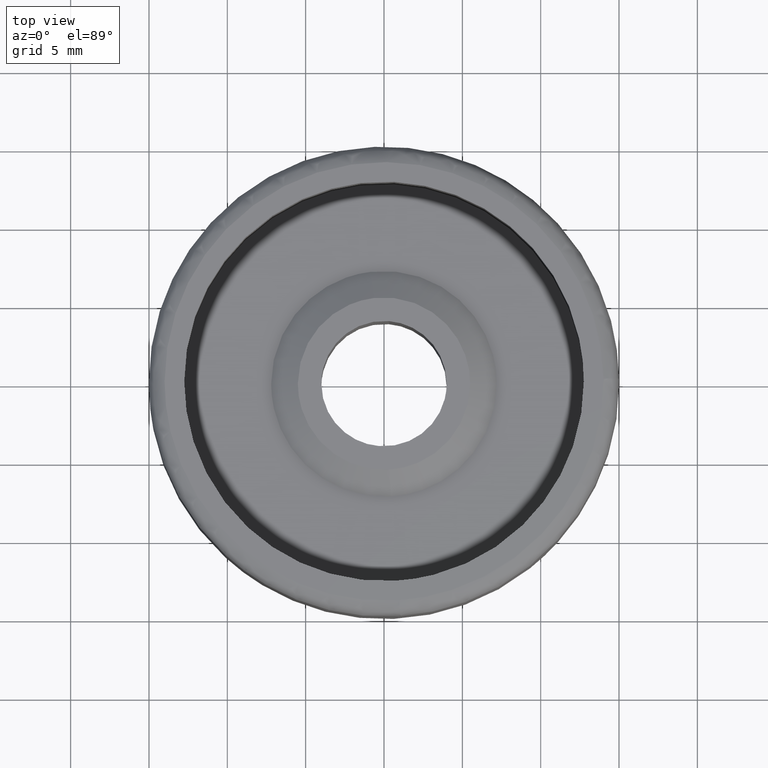
[diagram: clean part render]
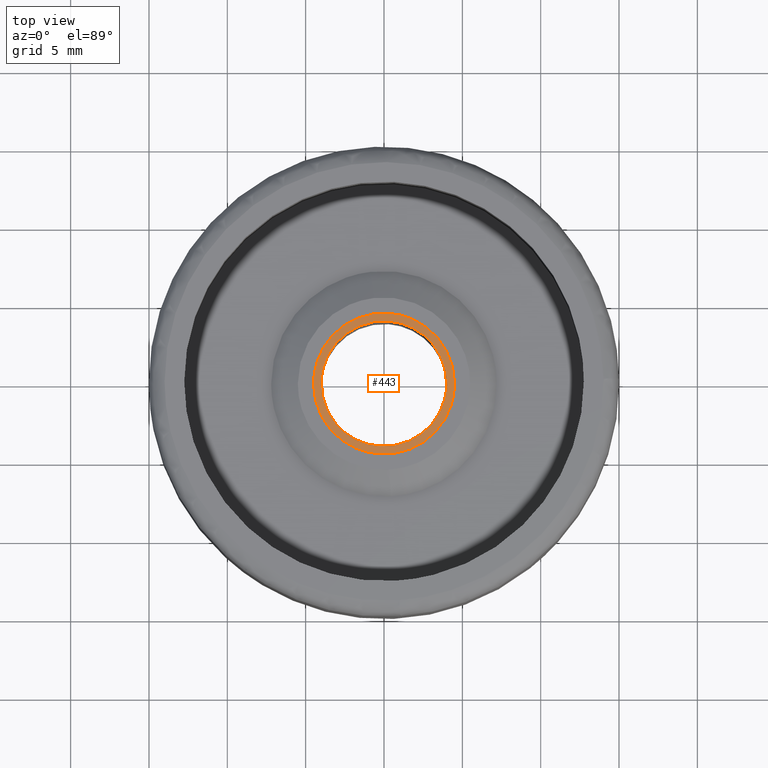
[diagram: same view with one face highlighted and labeled with its STEP entity id]
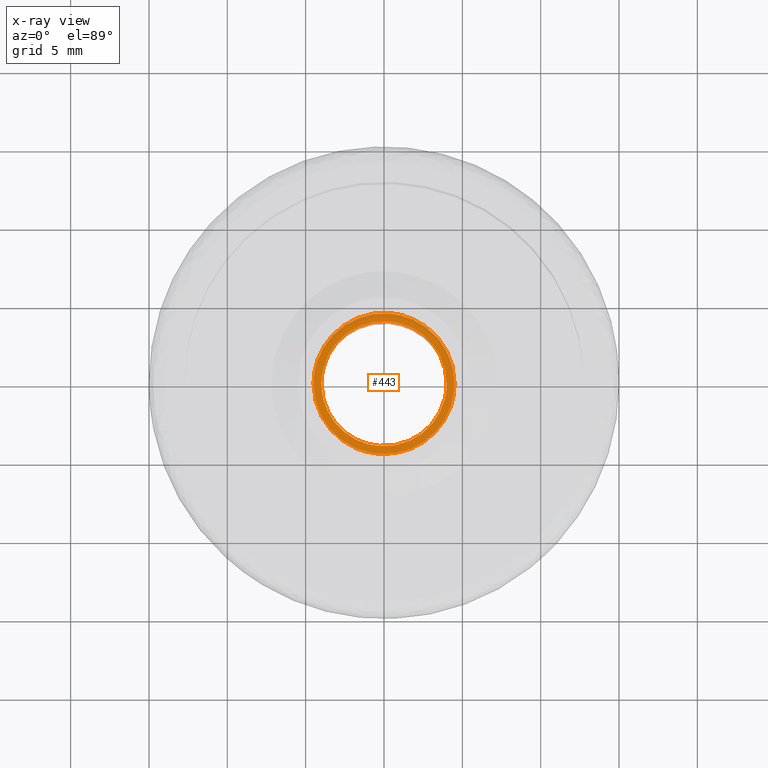
[diagram: x-ray of the same camera — body ghosted, the highlighted face saturated]
A machine part, top view. The second image highlights one B-rep face of the part: STEP entity #443.
The next image is the same camera in x-ray: the body ghosted, the highlighted face saturated — about 0% of this face is hidden behind the body in this view.
In plain terms, the highlighted face is a freeform B-spline surface patch.
Its self-contained STEP definition (entity closure, byte-faithful):
#79=CARTESIAN_POINT('',(-0.353065930799224,-4.486128001797193,11.500000000000000));
#80=VERTEX_POINT('',#79);
#86=CARTESIAN_POINT('',(-4.500000000000000,0.0,11.500000000000000));
#87=VERTEX_POINT('',#86);
#88=CARTESIAN_POINT('',(-4.500000000000000,0.0,11.500000000000000));
#89=CARTESIAN_POINT('',(-4.499999999999999,-4.159757212417433,11.500000000000002));
#90=CARTESIAN_POINT('',(-0.353065930799224,-4.486128001797193,11.499999999999998));
#98=(BOUNDED_CURVE()B_SPLINE_CURVE(2,(#88,#89,#90),.UNSPECIFIED.,.F.,.U.)B_SPLINE_CURVE_WITH_KNOTS((3,3),(0.0,0.236331300630939),.UNSPECIFIED.)CURVE()GEOMETRIC_REPRESENTATION_ITEM()RATIONAL_B_SPLINE_CURVE((1.0,0.723120658607339,0.969723356168000))REPRESENTATION_ITEM(''));
#99=EDGE_CURVE('',#87,#80,#98,.T.);
#101=CARTESIAN_POINT('',(0.353065930799223,4.486128001797193,11.500000000000000));
#102=VERTEX_POINT('',#101);
#103=CARTESIAN_POINT('',(0.353065930799222,4.486128001797193,11.500000000000004));
#104=CARTESIAN_POINT('',(0.176805481558544,4.500000000000000,11.500000000000004));
#105=CARTESIAN_POINT('',(0.0,4.500000000000000,11.500000000000000));
#106=CARTESIAN_POINT('',(-4.500000000000000,4.500000000000000,11.500000000000002));
#107=CARTESIAN_POINT('',(-4.500000000000000,0.0,11.500000000000000));
#115=(BOUNDED_CURVE()B_SPLINE_CURVE(2,(#103,#104,#105,#106,#107),.UNSPECIFIED.,.F.,.U.)B_SPLINE_CURVE_WITH_KNOTS((3,2,3),(0.736331300630939,0.750000000000000,1.0),.UNSPECIFIED.)CURVE()GEOMETRIC_REPRESENTATION_ITEM()RATIONAL_B_SPLINE_CURVE((0.969723356168001,0.983986122579209,1.0,0.707106781186547,1.0))REPRESENTATION_ITEM(''));
#116=EDGE_CURVE('',#102,#87,#115,.T.);
#192=CARTESIAN_POINT('',(4.500000000000000,0.0,11.500000000000000));
#193=VERTEX_POINT('',#192);
#194=CARTESIAN_POINT('',(4.500000000000000,0.0,11.500000000000000));
#195=CARTESIAN_POINT('',(4.500000000000000,4.159757212417430,11.500000000000000));
#196=CARTESIAN_POINT('',(0.353065930799223,4.486128001797193,11.500000000000000));
#204=(BOUNDED_CURVE()B_SPLINE_CURVE(2,(#194,#195,#196),.UNSPECIFIED.,.F.,.U.)B_SPLINE_CURVE_WITH_KNOTS((3,3),(0.500000000000000,0.736331300630939),.UNSPECIFIED.)CURVE()GEOMETRIC_REPRESENTATION_ITEM()RATIONAL_B_SPLINE_CURVE((1.0,0.723120658607339,0.969723356168000))REPRESENTATION_ITEM(''));
#205=EDGE_CURVE('',#193,#102,#204,.T.);
#207=CARTESIAN_POINT('',(-0.353065930799224,-4.486128001797193,11.499999999999995));
#208=CARTESIAN_POINT('',(-0.176805481558545,-4.500000000000001,11.499999999999996));
#209=CARTESIAN_POINT('',(0.0,-4.500000000000000,11.500000000000000));
#210=CARTESIAN_POINT('',(4.500000000000000,-4.500000000000000,11.500000000000002));
#211=CARTESIAN_POINT('',(4.500000000000000,0.0,11.500000000000000));
#219=(BOUNDED_CURVE()B_SPLINE_CURVE(2,(#207,#208,#209,#210,#211),.UNSPECIFIED.,.F.,.U.)B_SPLINE_CURVE_WITH_KNOTS((3,2,3),(0.236331300630939,0.250000000000000,0.500000000000000),.UNSPECIFIED.)CURVE()GEOMETRIC_REPRESENTATION_ITEM()RATIONAL_B_SPLINE_CURVE((0.969723356168000,0.983986122579209,1.0,0.707106781186547,1.0))REPRESENTATION_ITEM(''));
#220=EDGE_CURVE('',#80,#193,#219,.T.);
#278=CARTESIAN_POINT('',(0.313836382930008,3.987669334931045,11.500000000000000));
#279=VERTEX_POINT('',#278);
#285=CARTESIAN_POINT('',(-4.0,0.0,11.500000000000000));
#286=VERTEX_POINT('',#285);
#287=CARTESIAN_POINT('',(0.313836382930008,3.987669334931045,11.499999999999998));
#288=CARTESIAN_POINT('',(0.157160428049392,4.0,11.500000000000004));
#289=CARTESIAN_POINT('',(0.0,4.0,11.500000000000000));
#290=CARTESIAN_POINT('',(-4.000000000000000,4.000000000000000,11.500000000000000));
#291=CARTESIAN_POINT('',(-4.0,0.0,11.500000000000000));
#299=(BOUNDED_CURVE()B_SPLINE_CURVE(2,(#287,#288,#289,#290,#291),.UNSPECIFIED.,.F.,.U.)B_SPLINE_CURVE_WITH_KNOTS((3,2,3),(0.736331300631165,0.750000000000000,1.0),.UNSPECIFIED.)CURVE()GEOMETRIC_REPRESENTATION_ITEM()RATIONAL_B_SPLINE_CURVE((0.969723356168473,0.983986122579474,1.0,0.707106781186548,1.0))REPRESENTATION_ITEM(''));
#300=EDGE_CURVE('',#279,#286,#299,.T.);
#302=CARTESIAN_POINT('',(-0.313836382930008,-3.987669334931045,11.500000000000000));
#303=VERTEX_POINT('',#302);
#304=CARTESIAN_POINT('',(-4.0,0.0,11.500000000000000));
#305=CARTESIAN_POINT('',(-4.0,-3.697561966598175,11.499999999999998));
#306=CARTESIAN_POINT('',(-0.313836382930008,-3.987669334931045,11.500000000000000));
#314=(BOUNDED_CURVE()B_SPLINE_CURVE(2,(#304,#305,#306),.UNSPECIFIED.,.F.,.U.)B_SPLINE_CURVE_WITH_KNOTS((3,3),(0.0,0.236331300631165),.UNSPECIFIED.)CURVE()GEOMETRIC_REPRESENTATION_ITEM()RATIONAL_B_SPLINE_CURVE((1.0,0.723120658607073,0.969723356168473))REPRESENTATION_ITEM(''));
#315=EDGE_CURVE('',#286,#303,#314,.T.);
#361=CARTESIAN_POINT('',(4.0,0.0,11.500000000000000));
#362=VERTEX_POINT('',#361);
#363=CARTESIAN_POINT('',(-0.313836382930008,-3.987669334931045,11.499999999999998));
#364=CARTESIAN_POINT('',(-0.157160428049392,-4.0,11.500000000000004));
#365=CARTESIAN_POINT('',(0.0,-4.0,11.500000000000000));
#366=CARTESIAN_POINT('',(4.000000000000000,-4.000000000000000,11.500000000000000));
#367=CARTESIAN_POINT('',(4.0,0.0,11.500000000000000));
#375=(BOUNDED_CURVE()B_SPLINE_CURVE(2,(#363,#364,#365,#366,#367),.UNSPECIFIED.,.F.,.U.)B_SPLINE_CURVE_WITH_KNOTS((3,2,3),(0.236331300631165,0.250000000000000,0.500000000000000),.UNSPECIFIED.)CURVE()GEOMETRIC_REPRESENTATION_ITEM()RATIONAL_B_SPLINE_CURVE((0.969723356168473,0.983986122579474,1.0,0.707106781186548,1.0))REPRESENTATION_ITEM(''));
#376=EDGE_CURVE('',#303,#362,#375,.T.);
#378=CARTESIAN_POINT('',(4.0,0.0,11.500000000000000));
#379=CARTESIAN_POINT('',(4.000000000000000,3.697561966598173,11.500000000000000));
#380=CARTESIAN_POINT('',(0.313836382930008,3.987669334931046,11.500000000000004));
#388=(BOUNDED_CURVE()B_SPLINE_CURVE(2,(#378,#379,#380),.UNSPECIFIED.,.F.,.U.)B_SPLINE_CURVE_WITH_KNOTS((3,3),(0.500000000000000,0.736331300631165),.UNSPECIFIED.)CURVE()GEOMETRIC_REPRESENTATION_ITEM()RATIONAL_B_SPLINE_CURVE((1.0,0.723120658607073,0.969723356168473))REPRESENTATION_ITEM(''));
#389=EDGE_CURVE('',#362,#279,#388,.T.);
#426=CARTESIAN_POINT('',(-4.949549982556253,4.948176387270819,11.500000000000000));
#427=CARTESIAN_POINT('',(4.949550223955065,4.948176387270819,11.500000000000000));
#428=CARTESIAN_POINT('',(-4.949549982556253,-4.948176628669632,11.500000000000000));
#429=CARTESIAN_POINT('',(4.949550223955065,-4.948176628669632,11.500000000000000));
#430=B_SPLINE_SURFACE_WITH_KNOTS('',1,1,((#426,#428),(#427,#429)),.UNSPECIFIED.,.F.,.F.,.U.,(2,2),(2,2),(0.0,9.899100206511317),(0.0,9.896353015940452),.UNSPECIFIED.);
#431=ORIENTED_EDGE('',*,*,#99,.T.);
#432=ORIENTED_EDGE('',*,*,#220,.T.);
#433=ORIENTED_EDGE('',*,*,#205,.T.);
#434=ORIENTED_EDGE('',*,*,#116,.T.);
#435=EDGE_LOOP('',(#431,#432,#433,#434));
#436=FACE_OUTER_BOUND('',#435,.T.);
#437=ORIENTED_EDGE('',*,*,#389,.F.);
#438=ORIENTED_EDGE('',*,*,#376,.F.);
#439=ORIENTED_EDGE('',*,*,#315,.F.);
#440=ORIENTED_EDGE('',*,*,#300,.F.);
#441=EDGE_LOOP('',(#437,#438,#439,#440));
#442=FACE_BOUND('',#441,.T.);
#443=ADVANCED_FACE('',(#436,#442),#430,.F.);